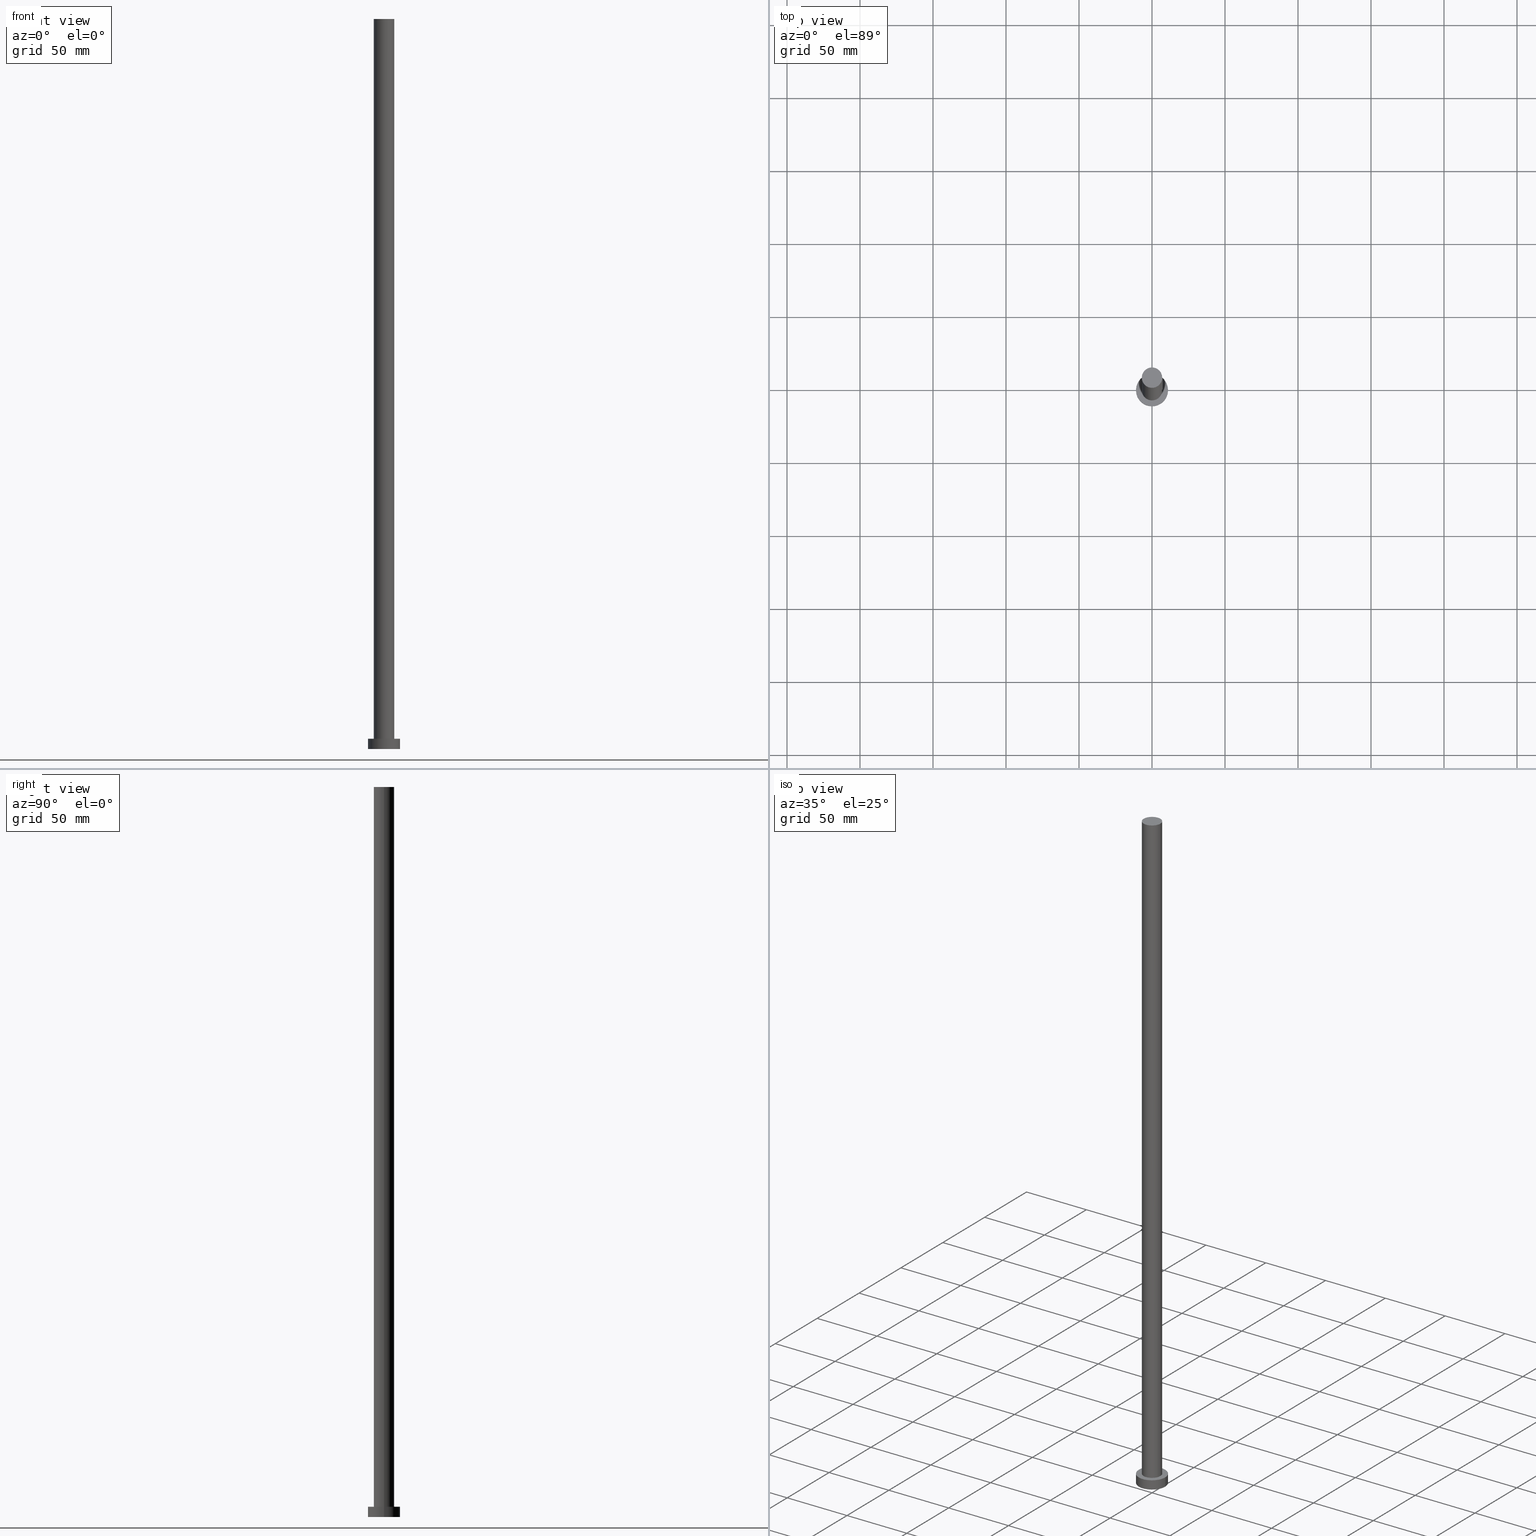
[diagram: canonical four-view strip — front | top / right | iso, engineering-drawing reading convention]
A machine part, canonical four-view strip (front | top / right | iso — engineering-drawing reading convention). The complete STEP part file that produces these views, byte-faithful:
ISO-10303-21;
HEADER;
FILE_DESCRIPTION (( 'STEP AP203' ),
    '1' );
FILE_NAME ('af1b.STEP',
    '2023-02-12T10:52:05',
    ( '' ),
    ( '' ),
    'SwSTEP 2.0',
    'SolidWorks 2019',
    '' );
FILE_SCHEMA (( 'CONFIG_CONTROL_DESIGN' ));
ENDSEC;

DATA;
#1 = EDGE_LOOP ( 'NONE', ( #199, #108, #200, #144 ) ) ;
#2 =( NAMED_UNIT ( * ) SI_UNIT ( $, .STERADIAN. ) SOLID_ANGLE_UNIT ( ) );
#3 = CC_DESIGN_DATE_AND_TIME_ASSIGNMENT ( #196, #79, ( #192 ) ) ;
#4 = APPROVAL_PERSON_ORGANIZATION ( #82, #66, #157 ) ;
#5 = DIRECTION ( 'NONE',  ( 0.000000000000000000, 0.000000000000000000, 1.000000000000000000 ) ) ;
#6 = EDGE_CURVE ( 'NONE', #158, #255, #165, .T. ) ;
#7 = AXIS2_PLACEMENT_3D ( 'NONE', #22, #212, #245 ) ;
#8 = CARTESIAN_POINT ( 'NONE',  ( 0.000000000000000000, 0.000000000000000000, 7.000000000000000000 ) ) ;
#9 = MANIFOLD_SOLID_BREP ( 'P�idat vysunut�m3', #18 ) ;
#10 = CC_DESIGN_PERSON_AND_ORGANIZATION_ASSIGNMENT ( #253, #98, ( #126 ) ) ;
#11 = PLANE ( 'NONE',  #87 ) ;
#12 = EDGE_LOOP ( 'NONE', ( #121, #17, #37, #95 ) ) ;
#13 = CARTESIAN_POINT ( 'NONE',  ( 0.000000000000000000, 0.000000000000000000, 500.0000000000000000 ) ) ;
#14 = PERSON_AND_ORGANIZATION ( #205, #147 ) ;
#15 = CC_DESIGN_APPROVAL ( #109, ( #192 ) ) ;
#16 = ORIENTED_EDGE ( 'NONE', *, *, #178, .F. ) ;
#17 = ORIENTED_EDGE ( 'NONE', *, *, #152, .T. ) ;
#18 = CLOSED_SHELL ( 'NONE', ( #164, #122, #100, #83, #239, #75, #88 ) ) ;
#19 = ORIENTED_EDGE ( 'NONE', *, *, #50, .T. ) ;
#20 = ORIENTED_EDGE ( 'NONE', *, *, #185, .F. ) ;
#21 = CC_DESIGN_SECURITY_CLASSIFICATION ( #71, ( #180 ) ) ;
#22 = CARTESIAN_POINT ( 'NONE',  ( 0.000000000000000000, 0.000000000000000000, 7.000000000000000000 ) ) ;
#23 =( NAMED_UNIT ( * ) PLANE_ANGLE_UNIT ( ) SI_UNIT ( $, .RADIAN. ) );
#24 =( GEOMETRIC_REPRESENTATION_CONTEXT ( 3 ) GLOBAL_UNCERTAINTY_ASSIGNED_CONTEXT ( ( #125 ) ) GLOBAL_UNIT_ASSIGNED_CONTEXT ( ( #240, #23, #2 ) ) REPRESENTATION_CONTEXT ( 'NONE', 'WORKASPACE' ) );
#25 = SHAPE_DEFINITION_REPRESENTATION ( #68, #48 ) ;
#26 = LINE ( 'NONE', #190, #118 ) ;
#27 = DIRECTION ( 'NONE',  ( 1.000000000000000000, 0.000000000000000000, 0.000000000000000000 ) ) ;
#28 = LOCAL_TIME ( 11, 52, 5.000000000000000000, #31 ) ;
#29 = DIRECTION ( 'NONE',  ( 0.000000000000000000, 0.000000000000000000, 1.000000000000000000 ) ) ;
#30 = LINE ( 'NONE', #59, #209 ) ;
#31 = COORDINATED_UNIVERSAL_TIME_OFFSET ( 1, 0, .AHEAD. ) ;
#32 = AXIS2_PLACEMENT_3D ( 'NONE', #151, #229, #210 ) ;
#33 = CARTESIAN_POINT ( 'NONE',  ( 0.000000000000000000, 0.000000000000000000, 7.000000000000000000 ) ) ;
#34 = EDGE_CURVE ( 'NONE', #45, #221, #47, .T. ) ;
#35 = CYLINDRICAL_SURFACE ( 'NONE', #86, 11.00000000000000000 ) ;
#36 = ORIENTED_EDGE ( 'NONE', *, *, #62, .T. ) ;
#37 = ORIENTED_EDGE ( 'NONE', *, *, #185, .T. ) ;
#38 = COORDINATED_UNIVERSAL_TIME_OFFSET ( 1, 0, .AHEAD. ) ;
#39 = PLANE ( 'NONE',  #43 ) ;
#40 = EDGE_CURVE ( 'NONE', #80, #202, #30, .T. ) ;
#41 = DATE_TIME_ROLE ( 'classification_date' ) ;
#42 = CYLINDRICAL_SURFACE ( 'NONE', #105, 7.000000000000000888 ) ;
#43 = AXIS2_PLACEMENT_3D ( 'NONE', #188, #5, #166 ) ;
#44 = FACE_OUTER_BOUND ( 'NONE', #194, .T. ) ;
#45 = VERTEX_POINT ( 'NONE', #61 ) ;
#46 = CYLINDRICAL_SURFACE ( 'NONE', #104, 11.00000000000000000 ) ;
#47 = CIRCLE ( 'NONE', #67, 7.000000000000000888 ) ;
#48 = ADVANCED_BREP_SHAPE_REPRESENTATION ( 'af1b', ( #9, #174 ), #24 ) ;
#49 = AXIS2_PLACEMENT_3D ( 'NONE', #92, #129, #27 ) ;
#50 = EDGE_CURVE ( 'NONE', #221, #45, #162, .T. ) ;
#51 = CARTESIAN_POINT ( 'NONE',  ( 7.000000000000000888, 8.572527594031474176E-16, 500.0000000000000000 ) ) ;
#52 = CARTESIAN_POINT ( 'NONE',  ( 0.000000000000000000, 0.000000000000000000, 500.0000000000000000 ) ) ;
#53 = AXIS2_PLACEMENT_3D ( 'NONE', #33, #216, #214 ) ;
#54 = PLANE ( 'NONE',  #130 ) ;
#55 = CALENDAR_DATE ( 2023, 12, 2 ) ;
#56 = ORIENTED_EDGE ( 'NONE', *, *, #203, .F. ) ;
#57 = PERSON_AND_ORGANIZATION ( #205, #147 ) ;
#58 = EDGE_LOOP ( 'NONE', ( #16, #235, #254, #81 ) ) ;
#59 = CARTESIAN_POINT ( 'NONE',  ( -11.00000000000000000, 0.000000000000000000, 7.000000000000000000 ) ) ;
#60 = CARTESIAN_POINT ( 'NONE',  ( 0.000000000000000000, 0.000000000000000000, 500.0000000000000000 ) ) ;
#61 = CARTESIAN_POINT ( 'NONE',  ( -7.000000000000000888, 0.000000000000000000, 500.0000000000000000 ) ) ;
#62 = EDGE_CURVE ( 'NONE', #45, #158, #140, .T. ) ;
#63 = DESIGN_CONTEXT ( 'detailed design', #114, 'design' ) ;
#64 = VERTEX_POINT ( 'NONE', #220 ) ;
#65 = PERSON_AND_ORGANIZATION_ROLE ( 'creator' ) ;
#66 = APPROVAL ( #179, 'NEUR�EN�' ) ;
#67 = AXIS2_PLACEMENT_3D ( 'NONE', #241, #29, #115 ) ;
#68 = PRODUCT_DEFINITION_SHAPE ( 'NONE', 'NONE',  #192 ) ;
#69 = DIRECTION ( 'NONE',  ( -1.000000000000000000, 0.000000000000000000, 0.000000000000000000 ) ) ;
#70 = COORDINATED_UNIVERSAL_TIME_OFFSET ( 1, 0, .AHEAD. ) ;
#71 = SECURITY_CLASSIFICATION ( '', '', #222 ) ;
#72 = LINE ( 'NONE', #148, #215 ) ;
#73 = FACE_OUTER_BOUND ( 'NONE', #12, .T. ) ;
#74 = DIRECTION ( 'NONE',  ( -1.000000000000000000, 0.000000000000000000, 0.000000000000000000 ) ) ;
#75 = ADVANCED_FACE ( 'NONE', ( #242 ), #42, .T. ) ;
#76 = DIRECTION ( 'NONE',  ( 1.000000000000000000, 0.000000000000000000, 0.000000000000000000 ) ) ;
#77 = LOCAL_TIME ( 11, 52, 5.000000000000000000, #38 ) ;
#78 = FACE_OUTER_BOUND ( 'NONE', #161, .T. ) ;
#79 = DATE_TIME_ROLE ( 'creation_date' ) ;
#80 = VERTEX_POINT ( 'NONE', #207 ) ;
#81 = ORIENTED_EDGE ( 'NONE', *, *, #40, .F. ) ;
#82 = PERSON_AND_ORGANIZATION ( #205, #147 ) ;
#83 = ADVANCED_FACE ( 'NONE', ( #186, #44 ), #39, .T. ) ;
#84 = PERSON_AND_ORGANIZATION ( #205, #147 ) ;
#85 = EDGE_CURVE ( 'NONE', #80, #64, #90, .T. ) ;
#86 = AXIS2_PLACEMENT_3D ( 'NONE', #91, #107, #89 ) ;
#87 = AXIS2_PLACEMENT_3D ( 'NONE', #135, #117, #138 ) ;
#88 = ADVANCED_FACE ( 'NONE', ( #172 ), #54, .T. ) ;
#89 = DIRECTION ( 'NONE',  ( -1.000000000000000000, 0.000000000000000000, 0.000000000000000000 ) ) ;
#90 = CIRCLE ( 'NONE', #7, 11.00000000000000000 ) ;
#91 = CARTESIAN_POINT ( 'NONE',  ( 0.000000000000000000, 0.000000000000000000, 7.000000000000000000 ) ) ;
#92 = CARTESIAN_POINT ( 'NONE',  ( 0.000000000000000000, 0.000000000000000000, 7.000000000000000000 ) ) ;
#93 = DIRECTION ( 'NONE',  ( 0.000000000000000000, 0.000000000000000000, 1.000000000000000000 ) ) ;
#94 = PERSON_AND_ORGANIZATION_ROLE ( 'design_supplier' ) ;
#95 = ORIENTED_EDGE ( 'NONE', *, *, #62, .F. ) ;
#96 = DIRECTION ( 'NONE',  ( -0.000000000000000000, -0.000000000000000000, -1.000000000000000000 ) ) ;
#97 = DIRECTION ( 'NONE',  ( 1.000000000000000000, 0.000000000000000000, 0.000000000000000000 ) ) ;
#98 = PERSON_AND_ORGANIZATION_ROLE ( 'design_owner' ) ;
#99 = EDGE_LOOP ( 'NONE', ( #167, #19 ) ) ;
#100 = ADVANCED_FACE ( 'NONE', ( #155 ), #35, .T. ) ;
#101 = LOCAL_TIME ( 11, 52, 5.000000000000000000, #243 ) ;
#102 = CARTESIAN_POINT ( 'NONE',  ( 0.000000000000000000, 0.000000000000000000, 500.0000000000000000 ) ) ;
#103 = APPLICATION_CONTEXT ( 'configuration controlled 3d designs of mechanical parts and assemblies' ) ;
#104 = AXIS2_PLACEMENT_3D ( 'NONE', #8, #189, #74 ) ;
#105 = AXIS2_PLACEMENT_3D ( 'NONE', #102, #206, #69 ) ;
#106 = LOCAL_TIME ( 11, 52, 5.000000000000000000, #236 ) ;
#107 = DIRECTION ( 'NONE',  ( -0.000000000000000000, -0.000000000000000000, -1.000000000000000000 ) ) ;
#108 = ORIENTED_EDGE ( 'NONE', *, *, #85, .F. ) ;
#109 = APPROVAL ( #176, 'NEUR�EN�' ) ;
#110 = FACE_OUTER_BOUND ( 'NONE', #58, .T. ) ;
#111 = DIRECTION ( 'NONE',  ( -0.000000000000000000, -0.000000000000000000, -1.000000000000000000 ) ) ;
#112 = AXIS2_PLACEMENT_3D ( 'NONE', #52, #149, #168 ) ;
#113 = DATE_AND_TIME ( #55, #28 ) ;
#114 = APPLICATION_CONTEXT ( 'configuration controlled 3d designs of mechanical parts and assemblies' ) ;
#115 = DIRECTION ( 'NONE',  ( 1.000000000000000000, 0.000000000000000000, 0.000000000000000000 ) ) ;
#116 = CALENDAR_DATE ( 2023, 12, 2 ) ;
#117 = DIRECTION ( 'NONE',  ( 0.000000000000000000, 0.000000000000000000, 1.000000000000000000 ) ) ;
#118 = VECTOR ( 'NONE', #111, 1000.000000000000000 ) ;
#119 = DIRECTION ( 'NONE',  ( -0.000000000000000000, -0.000000000000000000, -1.000000000000000000 ) ) ;
#120 = CARTESIAN_POINT ( 'NONE',  ( 11.00000000000000000, 1.347111479062088405E-15, 0.000000000000000000 ) ) ;
#121 = ORIENTED_EDGE ( 'NONE', *, *, #50, .F. ) ;
#122 = ADVANCED_FACE ( 'NONE', ( #110 ), #46, .T. ) ;
#123 = ORIENTED_EDGE ( 'NONE', *, *, #85, .T. ) ;
#124 = DATE_AND_TIME ( #233, #77 ) ;
#125 = UNCERTAINTY_MEASURE_WITH_UNIT (LENGTH_MEASURE( 1.000000000000000082E-05 ), #240, 'distance_accuracy_value', 'NONE');
#126 = PRODUCT ( 'af1b', 'af1b', '', ( #159 ) ) ;
#127 = CALENDAR_DATE ( 2023, 12, 2 ) ;
#128 = CYLINDRICAL_SURFACE ( 'NONE', #112, 7.000000000000000888 ) ;
#129 = DIRECTION ( 'NONE',  ( 0.000000000000000000, 0.000000000000000000, 1.000000000000000000 ) ) ;
#130 = AXIS2_PLACEMENT_3D ( 'NONE', #60, #139, #251 ) ;
#131 = CC_DESIGN_APPROVAL ( #218, ( #71 ) ) ;
#132 = APPROVAL_DATE_TIME ( #193, #218 ) ;
#133 = PRODUCT_RELATED_PRODUCT_CATEGORY ( 'detail', '', ( #126 ) ) ;
#134 = PERSON_AND_ORGANIZATION_ROLE ( 'creator' ) ;
#135 = CARTESIAN_POINT ( 'NONE',  ( 0.000000000000000000, 0.000000000000000000, 0.000000000000000000 ) ) ;
#136 = ORIENTED_EDGE ( 'NONE', *, *, #152, .F. ) ;
#137 = APPLICATION_PROTOCOL_DEFINITION ( 'international standard', 'config_control_design', 1994, #103 ) ;
#138 = DIRECTION ( 'NONE',  ( 1.000000000000000000, 0.000000000000000000, -0.000000000000000000 ) ) ;
#139 = DIRECTION ( 'NONE',  ( 0.000000000000000000, 0.000000000000000000, 1.000000000000000000 ) ) ;
#140 = LINE ( 'NONE', #234, #228 ) ;
#141 = CC_DESIGN_PERSON_AND_ORGANIZATION_ASSIGNMENT ( #182, #223, ( #71 ) ) ;
#142 = EDGE_LOOP ( 'NONE', ( #136, #173, #36, #181 ) ) ;
#143 = CARTESIAN_POINT ( 'NONE',  ( 0.000000000000000000, 0.000000000000000000, 0.000000000000000000 ) ) ;
#144 = ORIENTED_EDGE ( 'NONE', *, *, #170, .T. ) ;
#145 = DATE_AND_TIME ( #187, #198 ) ;
#146 = CARTESIAN_POINT ( 'NONE',  ( 7.000000000000000888, 8.572527594031474176E-16, 7.000000000000000000 ) ) ;
#147 = ORGANIZATION ( 'NEUR�EN�', 'NEUR�EN�', '' ) ;
#148 = CARTESIAN_POINT ( 'NONE',  ( 7.000000000000000888, 8.572527594031474176E-16, 500.0000000000000000 ) ) ;
#149 = DIRECTION ( 'NONE',  ( -0.000000000000000000, -0.000000000000000000, -1.000000000000000000 ) ) ;
#150 = CARTESIAN_POINT ( 'NONE',  ( -11.00000000000000000, 0.000000000000000000, 0.000000000000000000 ) ) ;
#151 = CARTESIAN_POINT ( 'NONE',  ( 0.000000000000000000, 0.000000000000000000, 0.000000000000000000 ) ) ;
#152 = EDGE_CURVE ( 'NONE', #221, #255, #72, .T. ) ;
#153 = APPROVAL_DATE_TIME ( #124, #66 ) ;
#154 = AXIS2_PLACEMENT_3D ( 'NONE', #246, #208, #226 ) ;
#155 = FACE_OUTER_BOUND ( 'NONE', #1, .T. ) ;
#156 = ORIENTED_EDGE ( 'NONE', *, *, #178, .T. ) ;
#157 = APPROVAL_ROLE ( '' ) ;
#158 = VERTEX_POINT ( 'NONE', #169 ) ;
#159 = MECHANICAL_CONTEXT ( 'NONE', #103, 'mechanical' ) ;
#160 = CC_DESIGN_DATE_AND_TIME_ASSIGNMENT ( #145, #41, ( #71 ) ) ;
#161 = EDGE_LOOP ( 'NONE', ( #232, #56 ) ) ;
#162 = CIRCLE ( 'NONE', #250, 7.000000000000000888 ) ;
#163 = PERSON_AND_ORGANIZATION ( #205, #147 ) ;
#164 = ADVANCED_FACE ( 'NONE', ( #73 ), #128, .T. ) ;
#165 = CIRCLE ( 'NONE', #53, 7.000000000000000888 ) ;
#166 = DIRECTION ( 'NONE',  ( 1.000000000000000000, 0.000000000000000000, -0.000000000000000000 ) ) ;
#167 = ORIENTED_EDGE ( 'NONE', *, *, #34, .T. ) ;
#168 = DIRECTION ( 'NONE',  ( -1.000000000000000000, 0.000000000000000000, 0.000000000000000000 ) ) ;
#169 = CARTESIAN_POINT ( 'NONE',  ( -7.000000000000000888, 0.000000000000000000, 7.000000000000000000 ) ) ;
#170 = EDGE_CURVE ( 'NONE', #202, #252, #197, .T. ) ;
#171 = APPLICATION_PROTOCOL_DEFINITION ( 'international standard', 'config_control_design', 1994, #114 ) ;
#172 = FACE_OUTER_BOUND ( 'NONE', #99, .T. ) ;
#173 = ORIENTED_EDGE ( 'NONE', *, *, #34, .F. ) ;
#174 = AXIS2_PLACEMENT_3D ( 'NONE', #143, #201, #97 ) ;
#175 = DIRECTION ( 'NONE',  ( 1.000000000000000000, 0.000000000000000000, 0.000000000000000000 ) ) ;
#176 = APPROVAL_STATUS ( 'not_yet_approved' ) ;
#177 = APPROVAL_DATE_TIME ( #113, #109 ) ;
#178 = EDGE_CURVE ( 'NONE', #64, #80, #224, .T. ) ;
#179 = APPROVAL_STATUS ( 'not_yet_approved' ) ;
#180 = PRODUCT_DEFINITION_FORMATION_WITH_SPECIFIED_SOURCE ( 'LIBOVOLN�', '', #126, .NOT_KNOWN. ) ;
#181 = ORIENTED_EDGE ( 'NONE', *, *, #6, .T. ) ;
#182 = PERSON_AND_ORGANIZATION ( #205, #147 ) ;
#183 = CC_DESIGN_PERSON_AND_ORGANIZATION_ASSIGNMENT ( #14, #94, ( #180 ) ) ;
#184 = APPROVAL_ROLE ( '' ) ;
#185 = EDGE_CURVE ( 'NONE', #255, #158, #247, .T. ) ;
#186 = FACE_BOUND ( 'NONE', #219, .T. ) ;
#187 = CALENDAR_DATE ( 2023, 12, 2 ) ;
#188 = CARTESIAN_POINT ( 'NONE',  ( 0.000000000000000000, 0.000000000000000000, 7.000000000000000000 ) ) ;
#189 = DIRECTION ( 'NONE',  ( -0.000000000000000000, -0.000000000000000000, -1.000000000000000000 ) ) ;
#190 = CARTESIAN_POINT ( 'NONE',  ( 11.00000000000000000, 1.347111479062088405E-15, 7.000000000000000000 ) ) ;
#191 = CIRCLE ( 'NONE', #32, 11.00000000000000000 ) ;
#192 = PRODUCT_DEFINITION ( 'NEZN�M�', '', #180, #63 ) ;
#193 = DATE_AND_TIME ( #127, #101 ) ;
#194 = EDGE_LOOP ( 'NONE', ( #123, #156 ) ) ;
#195 = ORIENTED_EDGE ( 'NONE', *, *, #6, .F. ) ;
#196 = DATE_AND_TIME ( #116, #106 ) ;
#197 = CIRCLE ( 'NONE', #154, 11.00000000000000000 ) ;
#198 = LOCAL_TIME ( 11, 52, 5.000000000000000000, #70 ) ;
#199 = ORIENTED_EDGE ( 'NONE', *, *, #230, .F. ) ;
#200 = ORIENTED_EDGE ( 'NONE', *, *, #40, .T. ) ;
#201 = DIRECTION ( 'NONE',  ( 0.000000000000000000, 0.000000000000000000, 1.000000000000000000 ) ) ;
#202 = VERTEX_POINT ( 'NONE', #150 ) ;
#203 = EDGE_CURVE ( 'NONE', #252, #202, #191, .T. ) ;
#204 = APPROVAL_STATUS ( 'not_yet_approved' ) ;
#205 = PERSON ( 'NEUR�EN�', 'NEUR�EN�', 'NEUR�EN�', ('NEUR�EN�'), ('NEUR�EN�'), ('NEUR�EN�') ) ;
#206 = DIRECTION ( 'NONE',  ( -0.000000000000000000, -0.000000000000000000, -1.000000000000000000 ) ) ;
#207 = CARTESIAN_POINT ( 'NONE',  ( -11.00000000000000000, 0.000000000000000000, 7.000000000000000000 ) ) ;
#208 = DIRECTION ( 'NONE',  ( 0.000000000000000000, 0.000000000000000000, 1.000000000000000000 ) ) ;
#209 = VECTOR ( 'NONE', #96, 1000.000000000000000 ) ;
#210 = DIRECTION ( 'NONE',  ( 1.000000000000000000, 0.000000000000000000, 0.000000000000000000 ) ) ;
#211 = DIRECTION ( 'NONE',  ( 0.000000000000000000, 0.000000000000000000, 1.000000000000000000 ) ) ;
#212 = DIRECTION ( 'NONE',  ( 0.000000000000000000, 0.000000000000000000, 1.000000000000000000 ) ) ;
#213 = APPROVAL_PERSON_ORGANIZATION ( #163, #218, #184 ) ;
#214 = DIRECTION ( 'NONE',  ( 1.000000000000000000, 0.000000000000000000, 0.000000000000000000 ) ) ;
#215 = VECTOR ( 'NONE', #248, 1000.000000000000000 ) ;
#216 = DIRECTION ( 'NONE',  ( 0.000000000000000000, 0.000000000000000000, 1.000000000000000000 ) ) ;
#217 = APPROVAL_ROLE ( '' ) ;
#218 = APPROVAL ( #204, 'NEUR�EN�' ) ;
#219 = EDGE_LOOP ( 'NONE', ( #195, #20 ) ) ;
#220 = CARTESIAN_POINT ( 'NONE',  ( 11.00000000000000000, 1.347111479062088405E-15, 7.000000000000000000 ) ) ;
#221 = VERTEX_POINT ( 'NONE', #51 ) ;
#222 = SECURITY_CLASSIFICATION_LEVEL ( 'unclassified' ) ;
#223 = PERSON_AND_ORGANIZATION_ROLE ( 'classification_officer' ) ;
#224 = CIRCLE ( 'NONE', #49, 11.00000000000000000 ) ;
#225 = CARTESIAN_POINT ( 'NONE',  ( 0.000000000000000000, 0.000000000000000000, 7.000000000000000000 ) ) ;
#226 = DIRECTION ( 'NONE',  ( 1.000000000000000000, 0.000000000000000000, 0.000000000000000000 ) ) ;
#227 = CC_DESIGN_PERSON_AND_ORGANIZATION_ASSIGNMENT ( #84, #65, ( #192 ) ) ;
#228 = VECTOR ( 'NONE', #119, 1000.000000000000000 ) ;
#229 = DIRECTION ( 'NONE',  ( 0.000000000000000000, 0.000000000000000000, 1.000000000000000000 ) ) ;
#230 = EDGE_CURVE ( 'NONE', #64, #252, #26, .T. ) ;
#231 = AXIS2_PLACEMENT_3D ( 'NONE', #225, #211, #76 ) ;
#232 = ORIENTED_EDGE ( 'NONE', *, *, #170, .F. ) ;
#233 = CALENDAR_DATE ( 2023, 12, 2 ) ;
#234 = CARTESIAN_POINT ( 'NONE',  ( -7.000000000000000888, 0.000000000000000000, 500.0000000000000000 ) ) ;
#235 = ORIENTED_EDGE ( 'NONE', *, *, #230, .T. ) ;
#236 = COORDINATED_UNIVERSAL_TIME_OFFSET ( 1, 0, .AHEAD. ) ;
#237 = CC_DESIGN_APPROVAL ( #66, ( #180 ) ) ;
#238 = PERSON_AND_ORGANIZATION ( #205, #147 ) ;
#239 = ADVANCED_FACE ( 'NONE', ( #78 ), #11, .F. ) ;
#240 =( LENGTH_UNIT ( ) NAMED_UNIT ( * ) SI_UNIT ( .MILLI., .METRE. ) );
#241 = CARTESIAN_POINT ( 'NONE',  ( 0.000000000000000000, 0.000000000000000000, 500.0000000000000000 ) ) ;
#242 = FACE_OUTER_BOUND ( 'NONE', #142, .T. ) ;
#243 = COORDINATED_UNIVERSAL_TIME_OFFSET ( 1, 0, .AHEAD. ) ;
#244 = APPROVAL_PERSON_ORGANIZATION ( #238, #109, #217 ) ;
#245 = DIRECTION ( 'NONE',  ( 1.000000000000000000, 0.000000000000000000, 0.000000000000000000 ) ) ;
#246 = CARTESIAN_POINT ( 'NONE',  ( 0.000000000000000000, 0.000000000000000000, 0.000000000000000000 ) ) ;
#247 = CIRCLE ( 'NONE', #231, 7.000000000000000888 ) ;
#248 = DIRECTION ( 'NONE',  ( -0.000000000000000000, -0.000000000000000000, -1.000000000000000000 ) ) ;
#249 = CC_DESIGN_PERSON_AND_ORGANIZATION_ASSIGNMENT ( #57, #134, ( #180 ) ) ;
#250 = AXIS2_PLACEMENT_3D ( 'NONE', #13, #93, #175 ) ;
#251 = DIRECTION ( 'NONE',  ( 1.000000000000000000, 0.000000000000000000, -0.000000000000000000 ) ) ;
#252 = VERTEX_POINT ( 'NONE', #120 ) ;
#253 = PERSON_AND_ORGANIZATION ( #205, #147 ) ;
#254 = ORIENTED_EDGE ( 'NONE', *, *, #203, .T. ) ;
#255 = VERTEX_POINT ( 'NONE', #146 ) ;
ENDSEC;
END-ISO-10303-21;
